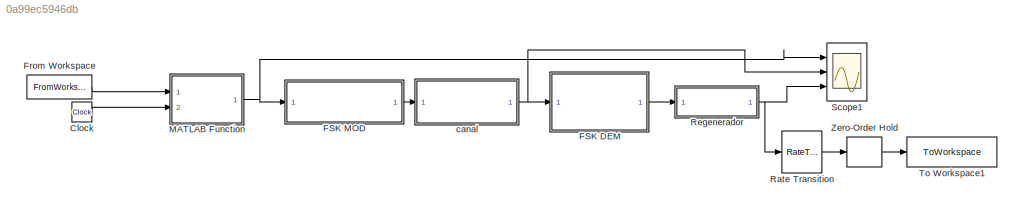
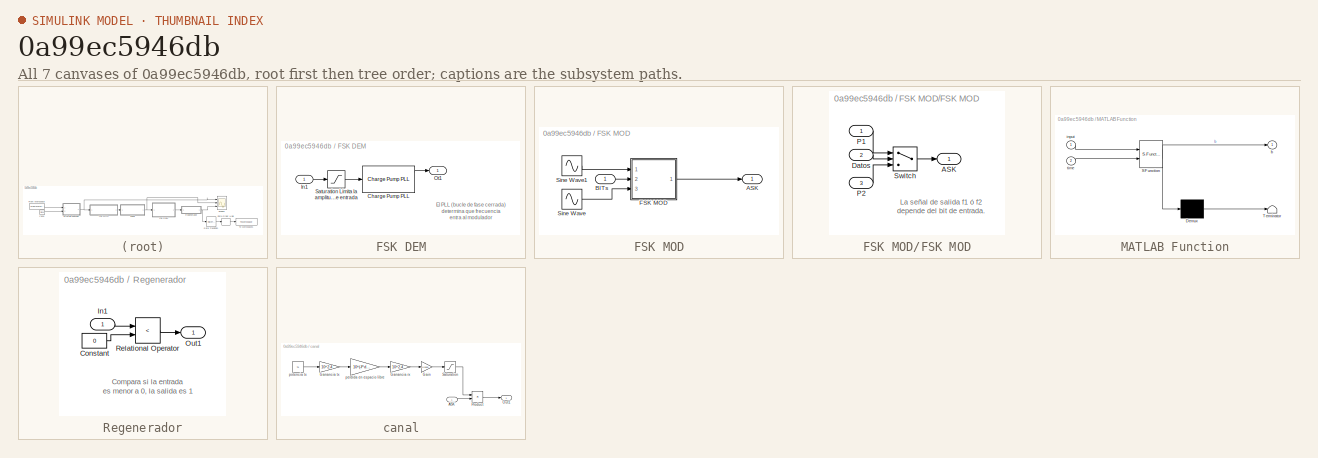
[diagram: thumbnail index - all 7 canvases of the model, root first then tree order]
MODEL slx_0a99ec5946db
KIND model
CONFIG AbsTol = auto
CONFIG EnableMultiTasking = off
CONFIG FixedStep = auto
CONFIG MaxStep = auto
CONFIG MinStep = auto
CONFIG RelTol = 1e-3
CONFIG SampleTimeConstraint = Unconstrained
CONFIG SolverName = VariableStepAuto
CONFIG StartTime = 0.0
CONFIG StopTime = 205*6
BLOCK [Clock] Clock
BLOCK [SubSystem] FSK DEM
  Ports = [1, 1]
  RequestExecContextInheritance = off
BLOCK [Reference] FSK DEM/Charge Pump PLL  REF=commsynccomp2/Charge Pump
PLL
  Ports = [1, 3]
  SourceBlock = commsynccomp2/Charge Pump\nPLL
  SourceProductBaseCode = CM
  SourceType = Charge Pump PLL
BLOCK [Inport] FSK DEM/In1
BLOCK [Outport] FSK DEM/Ot1
BLOCK [Saturate] FSK DEM/Saturation Limita la amplitud de la señal de entrada
BLOCK [SubSystem] FSK MOD
  Ports = [1, 1]
  RequestExecContextInheritance = off
BLOCK [Outport] FSK MOD/ASK
BLOCK [Inport] FSK MOD/BITs
BLOCK [SubSystem] FSK MOD/FSK MOD
  Ports = [3, 1]
  RequestExecContextInheritance = off
BLOCK [Outport] FSK MOD/FSK MOD/ASK
BLOCK [Inport] FSK MOD/FSK MOD/Datos
  Port = 2
BLOCK [Inport] FSK MOD/FSK MOD/P1
BLOCK [Inport] FSK MOD/FSK MOD/P2
  Port = 3
BLOCK [Switch] FSK MOD/FSK MOD/Switch
  InputSameDT = off
  SaturateOnIntegerOverflow = off
  Threshold = 0.5
BLOCK [Sin] FSK MOD/Sine Wave
  Frequency = 2*pi*12
  Ports = [0, 1]
  SampleTime = 0.01
  Samples = 25
BLOCK [Sin] FSK MOD/Sine Wave1
  Frequency = 2*pi*8
  Ports = [0, 1]
  SampleTime = 0.01
  Samples = 50
BLOCK [FromWorkspace] From Workspace
  VariableName = binary
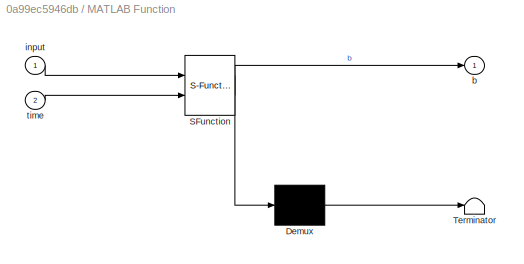
BLOCK [SubSystem] MATLAB Function
  ErrorFcn = Stateflow.Translate.translate
  PermitHierarchicalResolution = ExplicitOnly
  Ports = [2, 1]
  RequestExecContextInheritance = off
  SFBlockType = MATLAB Function
  TreatAsAtomicUnit = on
BLOCK [Demux] MATLAB Function/ Demux 
  Outputs = 1
  Ports = [1, 1]
BLOCK [S-Function] MATLAB Function/ SFunction 
  EnableBusSupport = on
  FunctionName = sf_sfun
  PortCounts = [2 2]
  Ports = [2, 2]
  SFcnIsStateOwnerBlock = off
  SFunctionDeploymentMode = off
  Tag = Stateflow S-Function 2
BLOCK [Terminator] MATLAB Function/ Terminator 
BLOCK [Outport] MATLAB Function/b
BLOCK [Inport] MATLAB Function/input
BLOCK [Inport] MATLAB Function/time
  Port = 2
BLOCK [RateTransition] Rate Transition
BLOCK [SubSystem] Regenerador
  Ports = [1, 1]
  RequestExecContextInheritance = off
BLOCK [Constant] Regenerador/Constant
  Value = 0
BLOCK [Inport] Regenerador/In1
BLOCK [Outport] Regenerador/Out1
BLOCK [RelationalOperator] Regenerador/Relational Operator
  InputSameDT = off
  Operator = <
  OutDataTypeStr = boolean
  Ports = [2, 1]
BLOCK [Scope] Scope1
  Floating = off
  NumInputPorts = 3
  Ports = [3]
  ScopeSpecificationString = Simulink.scopes.TimeScopeBlockCfg('CurrentConfiguration', extmgr.ConfigurationSet(extmgr.Configuration('Core','General UI',true),extmgr.Configuration('Core','Source UI',true),extmgr.Configuration('Sources','WiredSimulink',true,'DataLoggingVariableName','ScopeData3'),extmgr.Configuration('Visuals','Time Domain',true,'SerializedDisplays',{struct('MinYLimReal','-0.125','MaxYLimReal','1.125','YLabelRe...<+2720ch>
BLOCK [ToWorkspace] To Workspace1
  FixptAsFi = on
  MaxDataPoints = inf
  Ports = [1]
  SampleTime = -1
  SaveFormat = Timeseries
  VariableName = out
BLOCK [ZeroOrderHold] Zero-Order Hold
  SampleTime = 6
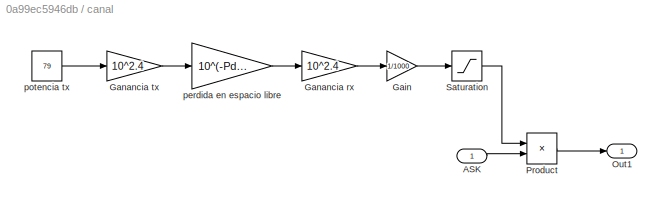
BLOCK [SubSystem] canal
  Ports = [1, 1]
  RequestExecContextInheritance = off
BLOCK [Inport] canal/ASK
BLOCK [Gain] canal/Gain
  Gain = 1/1000
BLOCK [Gain] canal/Ganancia rx
  Gain = 10^2.4
BLOCK [Gain] canal/Ganancia tx
  Gain = 10^2.4
BLOCK [Outport] canal/Out1
BLOCK [Product] canal/Product
  Ports = [2, 1]
BLOCK [Saturate] canal/Saturation
  LowerLimit = 0
  UpperLimit = 1
BLOCK [Gain] canal/perdida en espacio libre
  Gain = 10^(-Pd/20)
BLOCK [Constant] canal/potencia tx
  Value = 79
ANNOTATION FSK DEM: El PLL (bucle de fase cerrada) determina que frecuencia entra al modulador
ANNOTATION FSK MOD/FSK MOD: La señal de salida f1 ó f2 depende del bit de entrada.
ANNOTATION Regenerador: Compara si la entrada es menor a 0, la salida es 1
LINE Clock:1 -> MATLAB Function:2
LINE FSK DEM/Charge Pump PLL:1 -> FSK DEM/Ot1:1
LINE FSK DEM/In1:1 -> FSK DEM/Saturation Limita la amplitud de la señal de entrada:1
LINE FSK DEM/Saturation Limita la amplitud de la señal de entrada:1 -> FSK DEM/Charge Pump PLL:1
LINE FSK DEM:1 -> Regenerador:1
LINE FSK MOD/BITs:1 -> FSK MOD/FSK MOD:2
LINE FSK MOD/FSK MOD/Datos:1 -> FSK MOD/FSK MOD/Switch:2
LINE FSK MOD/FSK MOD/P1:1 -> FSK MOD/FSK MOD/Switch:1
LINE FSK MOD/FSK MOD/P2:1 -> FSK MOD/FSK MOD/Switch:3
LINE FSK MOD/FSK MOD/Switch:1 -> FSK MOD/FSK MOD/ASK:1
LINE FSK MOD/FSK MOD:1 -> FSK MOD/ASK:1
LINE FSK MOD/Sine Wave1:1 -> FSK MOD/FSK MOD:1
LINE FSK MOD/Sine Wave:1 -> FSK MOD/FSK MOD:3
LINE FSK MOD:1 -> canal:1
LINE From Workspace:1 -> MATLAB Function:1
NET MATLAB Function:1 -> FSK MOD:1, Scope1:1
LINE Rate Transition:1 -> Zero-Order Hold:1
LINE Regenerador/Constant:1 -> Regenerador/Relational Operator:2
LINE Regenerador/In1:1 -> Regenerador/Relational Operator:1
LINE Regenerador/Relational Operator:1 -> Regenerador/Out1:1
NET Regenerador:1 -> Rate Transition:1, Scope1:3
LINE Zero-Order Hold:1 -> To Workspace1:1
LINE canal/ASK:1 -> canal/Product:2
LINE canal/Gain:1 -> canal/Saturation:1
LINE canal/Ganancia rx:1 -> canal/Gain:1
LINE canal/Ganancia tx:1 -> canal/perdida en espacio libre:1
LINE canal/Product:1 -> canal/Out1:1
LINE canal/Saturation:1 -> canal/Product:1
LINE canal/perdida en espacio libre:1 -> canal/Ganancia rx:1
LINE canal/potencia tx:1 -> canal/Ganancia tx:1
NET canal:1 -> FSK DEM:1, Scope1:2
note: NET lines group one-source signal fan-out (src -> all destinations, sorted); 1:1 wires keep LINE
CHART MATLAB Function states=1 transitions=1
  STATE_LABEL 'eML_blk_kernel()'
  STATE_LABEL 'SCRIPT:\nfunction b = fcn(input,time)\n    b=input(floor(time/6)+1);\nend\n'
CHART  states=0 transitions=0
